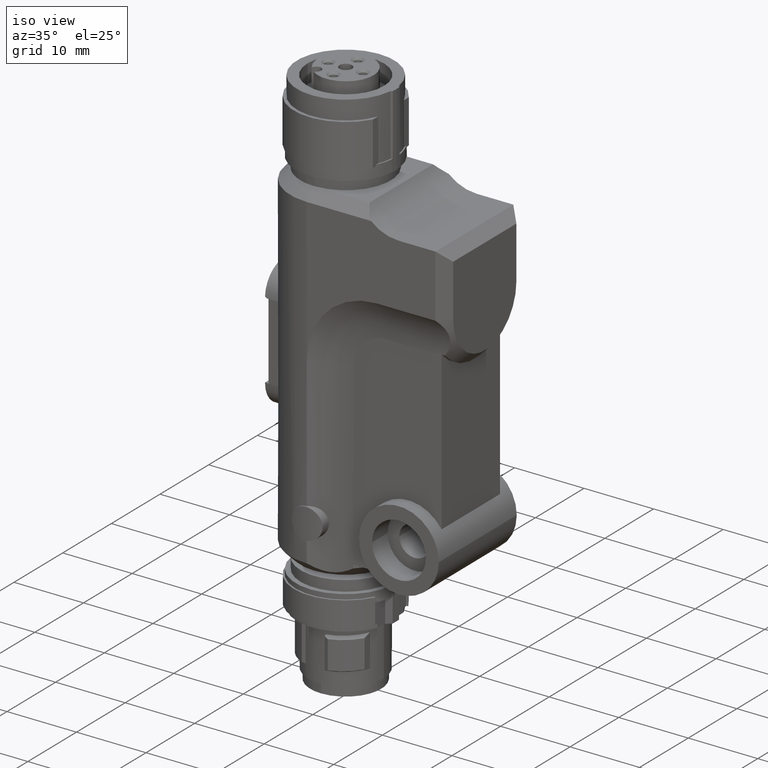
[diagram: clean part render]
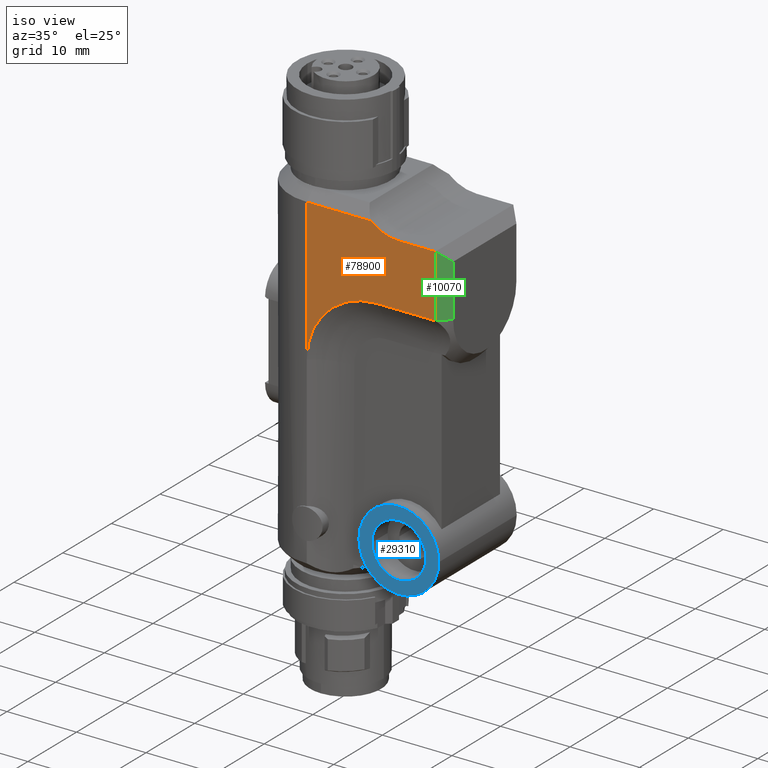
[diagram: same view with three faces highlighted in distinct colors, each labeled with its STEP entity id]
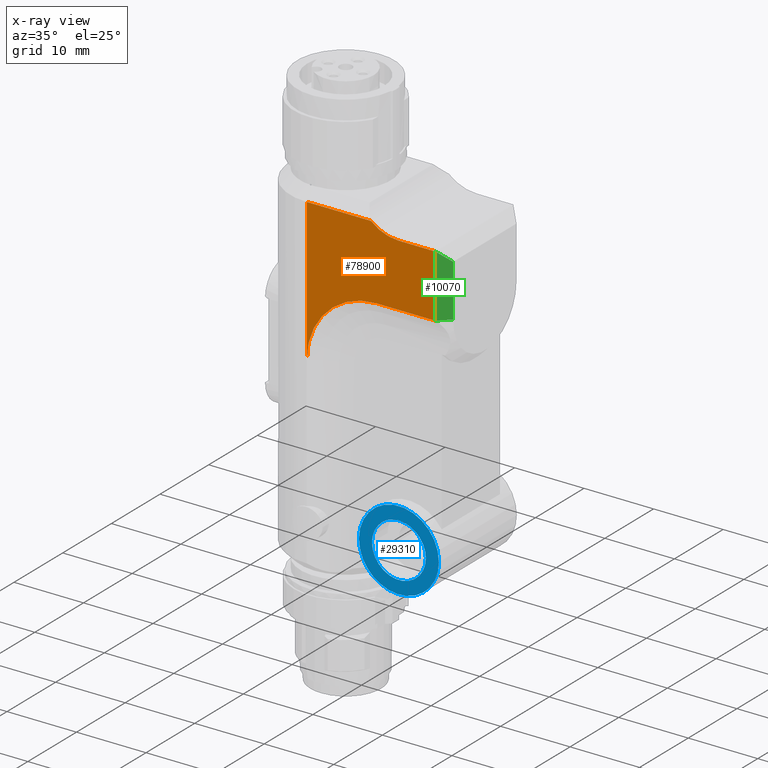
[diagram: x-ray of the same camera — body ghosted, the three highlighted faces saturated]
A machine part, iso view with three faces highlighted in distinct colors.
The next image is the same camera in x-ray (body ghosted, the three faces saturated) — at least one of them is partly hidden behind the body in this view.
Their STEP definitions:

[orange] entity #78900 — the highlighted planar face has unit normal (0, -1, 0).
#4860=CARTESIAN_POINT('',(8.,3.5527136788005E-15,0.));
#4870=DIRECTION('',(0.,0.,-1.));
#4880=VECTOR('',#4870,1.);
#4890=LINE('',#4860,#4880);
#4900=CARTESIAN_POINT('',(8.,5.28330100839187E-15,48.5));
#4910=VERTEX_POINT('',#4900);
#4920=CARTESIAN_POINT('',(8.,1.95399252334028E-14,28.0000000000002));
#4930=VERTEX_POINT('',#4920);
#4940=EDGE_CURVE('',#4910,#4930,#4890,.T.);
#9790=CARTESIAN_POINT('',(8.,18.5,38.));
#9800=VERTEX_POINT('',#9790);
#9830=CARTESIAN_POINT('',(8.,18.5,0.));
#9840=DIRECTION('',(0.,0.,-1.));
#9850=VECTOR('',#9840,1.);
#9860=LINE('',#9830,#9850);
#9870=CARTESIAN_POINT('',(8.,18.5,47.));
#9880=VERTEX_POINT('',#9870);
#9890=EDGE_CURVE('',#9880,#9800,#9860,.T.);
#18640=CARTESIAN_POINT('',(8.,13.1961524227066,47.));
#18650=VERTEX_POINT('',#18640);
#18770=CARTESIAN_POINT('',(8.,0.,47.));
#18780=DIRECTION('',(0.,-1.,0.));
#18790=VECTOR('',#18780,1.);
#18800=LINE('',#18770,#18790);
#18810=EDGE_CURVE('',#9880,#18650,#18800,.T.);
#19090=CARTESIAN_POINT('',(8.,13.1961524227066,53.));
#19100=DIRECTION('',(-1.,0.,0.));
#19110=DIRECTION('',(0.,1.,0.));
#19120=AXIS2_PLACEMENT_3D('',#19090,#19100,#19110);
#19130=CIRCLE('',#19120,5.99999999999996);
#19140=CARTESIAN_POINT('',(8.,9.2275254561098,48.5));
#19150=VERTEX_POINT('',#19140);
#19160=EDGE_CURVE('',#18650,#19150,#19130,.T.);
#23620=CARTESIAN_POINT('',(8.,20.,38.));
#23630=DIRECTION('',(0.,1.,0.));
#23640=VECTOR('',#23630,1.);
#23650=LINE('',#23620,#23640);
#23660=CARTESIAN_POINT('',(8.,10.0002770649337,38.));
#23670=VERTEX_POINT('',#23660);
#23680=EDGE_CURVE('',#23670,#9800,#23650,.T.);
#24880=CARTESIAN_POINT('',(8.,10.,28.));
#24890=DIRECTION('',(1.,4.93038065763133E-31,2.52970265222012E-16));
#24900=DIRECTION('',(7.62657342238343E-31,-1.,-1.06581410364015E-15));
#24910=AXIS2_PLACEMENT_3D('',#24880,#24890,#24900);
#24920=CIRCLE('',#24910,9.99999999999999);
#24930=EDGE_CURVE('',#23670,#4930,#24920,.T.);
#78590=CARTESIAN_POINT('',(8.,0.,48.5));
#78600=DIRECTION('',(0.,-1.,0.));
#78610=VECTOR('',#78600,1.);
#78620=LINE('',#78590,#78610);
#78630=EDGE_CURVE('',#19150,#4910,#78620,.T.);
#78760=CARTESIAN_POINT('',(8.,7.46028462077985,13.0533067988253));
#78770=DIRECTION('',(1.,0.,0.));
#78780=DIRECTION('',(0.,-1.,0.));
#78790=AXIS2_PLACEMENT_3D('',#78760,#78770,#78780);
#78800=PLANE('',#78790);
#78810=ORIENTED_EDGE('',*,*,#4940,.T.);
#78820=ORIENTED_EDGE('',*,*,#78630,.T.);
#78830=ORIENTED_EDGE('',*,*,#19160,.T.);
#78840=ORIENTED_EDGE('',*,*,#18810,.T.);
#78850=ORIENTED_EDGE('',*,*,#9890,.F.);
#78860=ORIENTED_EDGE('',*,*,#23680,.T.);
#78870=ORIENTED_EDGE('',*,*,#24930,.F.);
#78880=EDGE_LOOP('',(#78870,#78860,#78850,#78840,#78830,#78820,#78810));
#78890=FACE_OUTER_BOUND('',#78880,.T.);
#78900=ADVANCED_FACE('',(#78890),#78800,.T.);

[blue] entity #29310 — the highlighted planar face has unit normal (0, -1, 0).
#10130=CARTESIAN_POINT('',(8.,13.25,6.75000000000001));
#10140=DIRECTION('',(1.,0.,0.));
#10150=DIRECTION('',(0.,1.,0.));
#10160=AXIS2_PLACEMENT_3D('',#10130,#10140,#10150);
#10170=CIRCLE('',#10160,5.75000000000003);
#10180=CARTESIAN_POINT('',(8.,10.5214545305889,1.688622754491));
#10190=VERTEX_POINT('',#10180);
#10200=CARTESIAN_POINT('',(8.,19.,6.75000000000001));
#10210=VERTEX_POINT('',#10200);
#10220=EDGE_CURVE('',#10190,#10210,#10170,.T.);
#10750=CARTESIAN_POINT('',(8.,7.49999999999997,6.75000000000001));
#10760=VERTEX_POINT('',#10750);
#10790=EDGE_CURVE('',#10760,#10190,#10170,.T.);
#29010=CARTESIAN_POINT('',(8.,13.25,11.3125));
#29020=DIRECTION('',(1.,0.,-0.));
#29030=DIRECTION('',(0.,0.,1.));
#29040=AXIS2_PLACEMENT_3D('',#29010,#29020,#29030);
#29050=PLANE('',#29040);
#29060=CARTESIAN_POINT('',(8.,13.25,6.75000000000001));
#29070=DIRECTION('',(1.,0.,0.));
#29080=DIRECTION('',(0.,1.,0.));
#29090=AXIS2_PLACEMENT_3D('',#29060,#29070,#29080);
#29100=CIRCLE('',#29090,3.87499999999999);
#29110=CARTESIAN_POINT('',(8.,13.25,10.625));
#29120=VERTEX_POINT('',#29110);
#29130=CARTESIAN_POINT('',(8.,9.37500000000003,6.75000000000001));
#29140=VERTEX_POINT('',#29130);
#29150=EDGE_CURVE('',#29120,#29140,#29100,.T.);
#29160=ORIENTED_EDGE('',*,*,#29150,.F.);
#29170=CARTESIAN_POINT('',(8.,17.125,6.75000000000001));
#29180=VERTEX_POINT('',#29170);
#29190=EDGE_CURVE('',#29140,#29180,#29100,.T.);
#29200=ORIENTED_EDGE('',*,*,#29190,.F.);
#29210=EDGE_CURVE('',#29180,#29120,#29100,.T.);
#29220=ORIENTED_EDGE('',*,*,#29210,.F.);
#29230=EDGE_LOOP('',(#29220,#29200,#29160));
#29240=FACE_BOUND('',#29230,.T.);
#29250=EDGE_CURVE('',#10210,#10760,#10170,.T.);
#29260=ORIENTED_EDGE('',*,*,#29250,.T.);
#29270=ORIENTED_EDGE('',*,*,#10220,.T.);
#29280=ORIENTED_EDGE('',*,*,#10790,.T.);
#29290=EDGE_LOOP('',(#29280,#29270,#29260));
#29300=FACE_OUTER_BOUND('',#29290,.T.);
#29310=ADVANCED_FACE('',(#29240,#29300),#29050,.T.);

[green] entity #10070 — the highlighted planar face has unit normal (0.7071, -0.7071, 0).
#9580=CARTESIAN_POINT('',(7.25000000000001,19.25,42.5));
#9590=DIRECTION('',(0.707106781186564,0.707106781186531,0.));
#9600=DIRECTION('',(0.707106781186531,-0.707106781186564,0.));
#9610=AXIS2_PLACEMENT_3D('',#9580,#9590,#9600);
#9620=PLANE('',#9610);
#9630=CARTESIAN_POINT('',(7.99999999999999,18.5,37.9999984046267));
#9640=CARTESIAN_POINT('',(7.50000000000003,19.,37.9999989364178));
#9650=CARTESIAN_POINT('',(7.00000000000009,19.5,37.999999468209));
#9660=CARTESIAN_POINT('',(6.50000000000013,20.,38.0000000000001));
#9670=B_SPLINE_CURVE_WITH_KNOTS('',3,(#9630,#9640,#9650,#9660),
.UNSPECIFIED.,.F.,.F.,(4,4),(0.,2.12132034356013),.UNSPECIFIED.);
#9680=CARTESIAN_POINT('',(7.99999859336715,18.5000014066329,
37.9999984050278));
#9690=VERTEX_POINT('',#9680);
#9700=CARTESIAN_POINT('',(6.50000000000003,20.,38.0000000000001));
#9710=VERTEX_POINT('',#9700);
#9720=EDGE_CURVE('',#9690,#9710,#9670,.T.);
#9730=ORIENTED_EDGE('',*,*,#9720,.T.);
#9740=CARTESIAN_POINT('',(14.0000000000001,12.4999999999996,
32.7084973778708));
#9750=DIRECTION('',(0.707106781186564,0.707106781186531,0.));
#9760=DIRECTION('',(0.707106781186531,-0.707106781186564,0.));
#9770=AXIS2_PLACEMENT_3D('',#9740,#9750,#9760);
#9780=ELLIPSE('',#9770,11.3137084989852,8.00000000000009);
#9790=CARTESIAN_POINT('',(8.,18.5,38.));
#9800=VERTEX_POINT('',#9790);
#9810=EDGE_CURVE('',#9690,#9800,#9780,.T.);
#9820=ORIENTED_EDGE('',*,*,#9810,.F.);
#9830=CARTESIAN_POINT('',(8.,18.5,0.));
#9840=DIRECTION('',(0.,0.,-1.));
#9850=VECTOR('',#9840,1.);
#9860=LINE('',#9830,#9850);
#9870=CARTESIAN_POINT('',(8.,18.5,47.));
#9880=VERTEX_POINT('',#9870);
#9890=EDGE_CURVE('',#9880,#9800,#9860,.T.);
#9900=ORIENTED_EDGE('',*,*,#9890,.T.);
#9910=CARTESIAN_POINT('',(-38.9999999999979,65.5,0.));
#9920=DIRECTION('',(0.577350269189608,-0.577350269189635,
0.577350269189635));
#9930=VECTOR('',#9920,1.);
#9940=LINE('',#9910,#9930);
#9950=CARTESIAN_POINT('',(6.50000000000003,20.,45.5));
#9960=VERTEX_POINT('',#9950);
#9970=EDGE_CURVE('',#9960,#9880,#9940,.T.);
#9980=ORIENTED_EDGE('',*,*,#9970,.T.);
#9990=CARTESIAN_POINT('',(6.50000000000003,20.,0.));
#10000=DIRECTION('',(0.,0.,-1.));
#10010=VECTOR('',#10000,1.);
#10020=LINE('',#9990,#10010);
#10030=EDGE_CURVE('',#9960,#9710,#10020,.T.);
#10040=ORIENTED_EDGE('',*,*,#10030,.F.);
#10050=EDGE_LOOP('',(#10040,#9980,#9900,#9820,#9730));
#10060=FACE_OUTER_BOUND('',#10050,.T.);
#10070=ADVANCED_FACE('',(#10060),#9620,.T.);